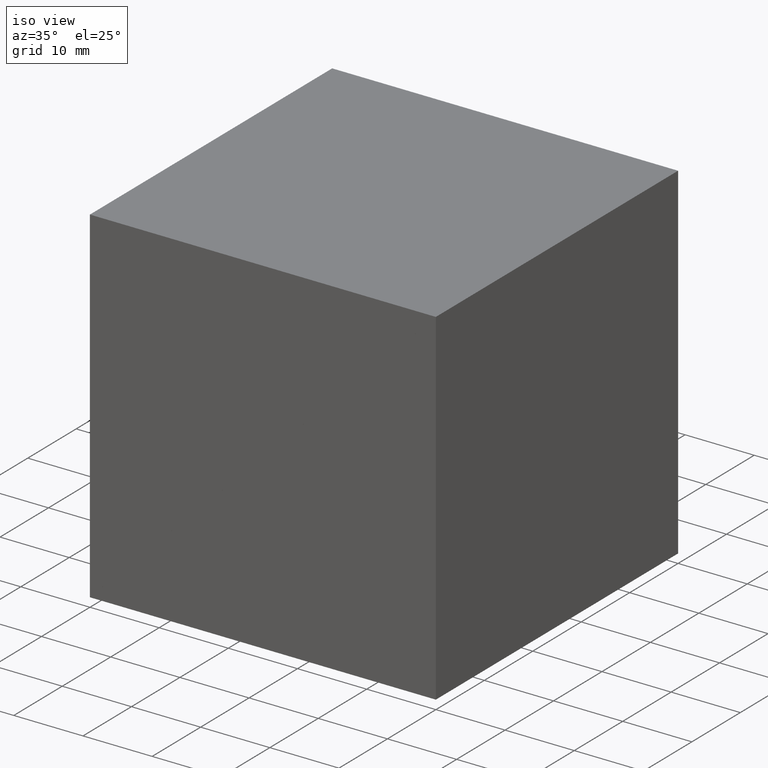
[diagram: clean part render]
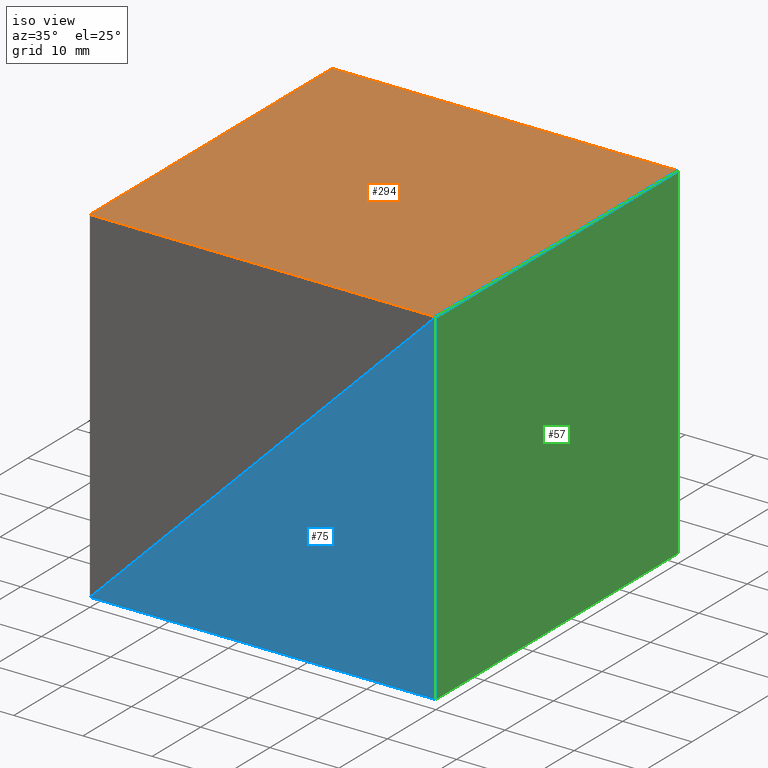
[diagram: same view with three faces highlighted in distinct colors, each labeled with its STEP entity id]
A machine part, iso view with three faces highlighted in distinct colors.
Their STEP definitions:

[orange] entity #294 — the highlighted planar face has unit normal (-0, 0, 1).
#6 = FACE_OUTER_BOUND ( 'NONE', #123, .T. ) ;
#8 = VECTOR ( 'NONE', #260, 1000.000000000000000 ) ;
#13 = LINE ( 'NONE', #59, #201 ) ;
#38 = AXIS2_PLACEMENT_3D ( 'NONE', #197, #61, #220 ) ;
#42 = LINE ( 'NONE', #211, #269 ) ;
#50 = DIRECTION ( 'NONE',  ( -1.000000000000000000, -0.0000000000000000000, -0.0000000000000000000 ) ) ;
#52 = ORIENTED_EDGE ( 'NONE', *, *, #173, .T. ) ;
#59 = CARTESIAN_POINT ( 'NONE',  ( -50.00000000000000000, 50.00000000000000000, 0.0000000000000000000 ) ) ;
#61 = DIRECTION ( 'NONE',  ( -0.0000000000000000000, 0.0000000000000000000, 1.000000000000000000 ) ) ;
#84 = PLANE ( 'NONE',  #38 ) ;
#95 = VERTEX_POINT ( 'NONE', #231 ) ;
#99 = CARTESIAN_POINT ( 'NONE',  ( -50.00000000000000000, 0.0000000000000000000, 0.0000000000000000000 ) ) ;
#116 = EDGE_CURVE ( 'NONE', #221, #297, #152, .T. ) ;
#123 = EDGE_LOOP ( 'NONE', ( #222, #247, #287, #52 ) ) ;
#129 = CARTESIAN_POINT ( 'NONE',  ( 0.0000000000000000000, 0.0000000000000000000, 0.0000000000000000000 ) ) ;
#152 = LINE ( 'NONE', #99, #165 ) ;
#165 = VECTOR ( 'NONE', #50, 1000.000000000000000 ) ;
#173 = EDGE_CURVE ( 'NONE', #95, #297, #284, .T. ) ;
#175 = DIRECTION ( 'NONE',  ( -1.000000000000000000, -0.0000000000000000000, -0.0000000000000000000 ) ) ;
#177 = CARTESIAN_POINT ( 'NONE',  ( -50.00000000000000000, 0.0000000000000000000, 0.0000000000000000000 ) ) ;
#197 = CARTESIAN_POINT ( 'NONE',  ( -50.00000000000000000, 50.00000000000000000, 0.0000000000000000000 ) ) ;
#201 = VECTOR ( 'NONE', #175, 1000.000000000000000 ) ;
#211 = CARTESIAN_POINT ( 'NONE',  ( 0.0000000000000000000, 50.00000000000000000, 0.0000000000000000000 ) ) ;
#220 = DIRECTION ( 'NONE',  ( 1.000000000000000000, 0.0000000000000000000, 0.0000000000000000000 ) ) ;
#221 = VERTEX_POINT ( 'NONE', #129 ) ;
#222 = ORIENTED_EDGE ( 'NONE', *, *, #116, .F. ) ;
#231 = CARTESIAN_POINT ( 'NONE',  ( -50.00000000000000000, 50.00000000000000000, 0.0000000000000000000 ) ) ;
#239 = CARTESIAN_POINT ( 'NONE',  ( -50.00000000000000000, 50.00000000000000000, 0.0000000000000000000 ) ) ;
#244 = EDGE_CURVE ( 'NONE', #273, #221, #42, .T. ) ;
#247 = ORIENTED_EDGE ( 'NONE', *, *, #244, .F. ) ;
#260 = DIRECTION ( 'NONE',  ( 0.0000000000000000000, -1.000000000000000000, 0.0000000000000000000 ) ) ;
#269 = VECTOR ( 'NONE', #295, 1000.000000000000000 ) ;
#273 = VERTEX_POINT ( 'NONE', #301 ) ;
#284 = LINE ( 'NONE', #239, #8 ) ;
#287 = ORIENTED_EDGE ( 'NONE', *, *, #290, .T. ) ;
#290 = EDGE_CURVE ( 'NONE', #273, #95, #13, .T. ) ;
#294 = ADVANCED_FACE ( 'NONE', ( #6 ), #84, .T. ) ;
#295 = DIRECTION ( 'NONE',  ( 0.0000000000000000000, -1.000000000000000000, 0.0000000000000000000 ) ) ;
#297 = VERTEX_POINT ( 'NONE', #177 ) ;
#301 = CARTESIAN_POINT ( 'NONE',  ( 0.0000000000000000000, 50.00000000000000000, 0.0000000000000000000 ) ) ;

[blue] entity #75 — the highlighted planar face has unit normal (-0, 1, 0).
#2 = ORIENTED_EDGE ( 'NONE', *, *, #71, .F. ) ;
#7 = DIRECTION ( 'NONE',  ( 0.0000000000000000000, -0.0000000000000000000, 1.000000000000000000 ) ) ;
#12 = CARTESIAN_POINT ( 'NONE',  ( -50.00000000000000000, 0.0000000000000000000, -49.99999999999999300 ) ) ;
#40 = VERTEX_POINT ( 'NONE', #194 ) ;
#41 = CARTESIAN_POINT ( 'NONE',  ( 0.0000000000000000000, 0.0000000000000000000, 0.0000000000000000000 ) ) ;
#55 = VERTEX_POINT ( 'NONE', #12 ) ;
#66 = VECTOR ( 'NONE', #69, 1000.000000000000000 ) ;
#69 = DIRECTION ( 'NONE',  ( 0.7071067811865475700, 0.0000000000000000000, 0.7071067811865474600 ) ) ;
#71 = EDGE_CURVE ( 'NONE', #40, #55, #83, .T. ) ;
#75 = ADVANCED_FACE ( 'NONE', ( #285 ), #160, .F. ) ;
#80 = DIRECTION ( 'NONE',  ( 0.0000000000000000000, 0.0000000000000000000, -1.000000000000000000 ) ) ;
#83 = LINE ( 'NONE', #253, #228 ) ;
#126 = VECTOR ( 'NONE', #80, 1000.000000000000000 ) ;
#133 = AXIS2_PLACEMENT_3D ( 'NONE', #41, #205, #7 ) ;
#136 = VERTEX_POINT ( 'NONE', #214 ) ;
#140 = EDGE_LOOP ( 'NONE', ( #153, #2, #218 ) ) ;
#153 = ORIENTED_EDGE ( 'NONE', *, *, #196, .F. ) ;
#155 = EDGE_CURVE ( 'NONE', #136, #40, #266, .T. ) ;
#160 = PLANE ( 'NONE',  #133 ) ;
#162 = DIRECTION ( 'NONE',  ( -1.000000000000000000, 0.0000000000000000000, 1.387778780781445700E-016 ) ) ;
#190 = CARTESIAN_POINT ( 'NONE',  ( 0.0000000000000000000, 0.0000000000000000000, 0.0000000000000000000 ) ) ;
#194 = CARTESIAN_POINT ( 'NONE',  ( 0.0000000000000000000, 0.0000000000000000000, -50.00000000000000000 ) ) ;
#196 = EDGE_CURVE ( 'NONE', #55, #136, #204, .T. ) ;
#204 = LINE ( 'NONE', #235, #66 ) ;
#205 = DIRECTION ( 'NONE',  ( -0.0000000000000000000, 1.000000000000000000, 0.0000000000000000000 ) ) ;
#214 = CARTESIAN_POINT ( 'NONE',  ( 0.0000000000000000000, 0.0000000000000000000, 0.0000000000000000000 ) ) ;
#218 = ORIENTED_EDGE ( 'NONE', *, *, #155, .F. ) ;
#228 = VECTOR ( 'NONE', #162, 1000.000000000000000 ) ;
#235 = CARTESIAN_POINT ( 'NONE',  ( -50.00000000000000000, 0.0000000000000000000, -49.99999999999999300 ) ) ;
#253 = CARTESIAN_POINT ( 'NONE',  ( 0.0000000000000000000, 0.0000000000000000000, -50.00000000000000000 ) ) ;
#266 = LINE ( 'NONE', #190, #126 ) ;
#285 = FACE_OUTER_BOUND ( 'NONE', #140, .T. ) ;

[green] entity #57 — the highlighted planar face has unit normal (-1, 0, 0).
#40 = VERTEX_POINT ( 'NONE', #194 ) ;
#51 = CARTESIAN_POINT ( 'NONE',  ( 0.0000000000000000000, 50.00000000000000000, 0.0000000000000000000 ) ) ;
#53 = CARTESIAN_POINT ( 'NONE',  ( 0.0000000000000000000, 50.00000000000000000, -50.00000000000000000 ) ) ;
#54 = LINE ( 'NONE', #51, #121 ) ;
#57 = ADVANCED_FACE ( 'NONE', ( #111 ), #208, .F. ) ;
#72 = DIRECTION ( 'NONE',  ( -1.000000000000000000, 0.0000000000000000000, 0.0000000000000000000 ) ) ;
#80 = DIRECTION ( 'NONE',  ( 0.0000000000000000000, 0.0000000000000000000, -1.000000000000000000 ) ) ;
#86 = VECTOR ( 'NONE', #128, 1000.000000000000000 ) ;
#104 = CARTESIAN_POINT ( 'NONE',  ( 0.0000000000000000000, 50.00000000000000000, 0.0000000000000000000 ) ) ;
#111 = FACE_OUTER_BOUND ( 'NONE', #169, .T. ) ;
#121 = VECTOR ( 'NONE', #241, 1000.000000000000000 ) ;
#126 = VECTOR ( 'NONE', #80, 1000.000000000000000 ) ;
#128 = DIRECTION ( 'NONE',  ( -0.0000000000000000000, -1.000000000000000000, -0.0000000000000000000 ) ) ;
#136 = VERTEX_POINT ( 'NONE', #214 ) ;
#141 = LINE ( 'NONE', #104, #86 ) ;
#151 = EDGE_CURVE ( 'NONE', #179, #291, #54, .T. ) ;
#155 = EDGE_CURVE ( 'NONE', #136, #40, #266, .T. ) ;
#159 = ORIENTED_EDGE ( 'NONE', *, *, #270, .T. ) ;
#168 = ORIENTED_EDGE ( 'NONE', *, *, #151, .F. ) ;
#169 = EDGE_LOOP ( 'NONE', ( #224, #225, #168, #159 ) ) ;
#174 = CARTESIAN_POINT ( 'NONE',  ( 0.0000000000000000000, 50.00000000000000000, -50.00000000000000000 ) ) ;
#179 = VERTEX_POINT ( 'NONE', #278 ) ;
#182 = DIRECTION ( 'NONE',  ( 0.0000000000000000000, 0.0000000000000000000, 1.000000000000000000 ) ) ;
#190 = CARTESIAN_POINT ( 'NONE',  ( 0.0000000000000000000, 0.0000000000000000000, 0.0000000000000000000 ) ) ;
#194 = CARTESIAN_POINT ( 'NONE',  ( 0.0000000000000000000, 0.0000000000000000000, -50.00000000000000000 ) ) ;
#208 = PLANE ( 'NONE',  #238 ) ;
#210 = LINE ( 'NONE', #174, #263 ) ;
#214 = CARTESIAN_POINT ( 'NONE',  ( 0.0000000000000000000, 0.0000000000000000000, 0.0000000000000000000 ) ) ;
#215 = DIRECTION ( 'NONE',  ( -0.0000000000000000000, -1.000000000000000000, -0.0000000000000000000 ) ) ;
#224 = ORIENTED_EDGE ( 'NONE', *, *, #155, .T. ) ;
#225 = ORIENTED_EDGE ( 'NONE', *, *, #250, .F. ) ;
#238 = AXIS2_PLACEMENT_3D ( 'NONE', #257, #72, #182 ) ;
#241 = DIRECTION ( 'NONE',  ( 0.0000000000000000000, 0.0000000000000000000, -1.000000000000000000 ) ) ;
#250 = EDGE_CURVE ( 'NONE', #291, #40, #210, .T. ) ;
#257 = CARTESIAN_POINT ( 'NONE',  ( 0.0000000000000000000, 50.00000000000000000, 0.0000000000000000000 ) ) ;
#263 = VECTOR ( 'NONE', #215, 1000.000000000000000 ) ;
#266 = LINE ( 'NONE', #190, #126 ) ;
#270 = EDGE_CURVE ( 'NONE', #179, #136, #141, .T. ) ;
#278 = CARTESIAN_POINT ( 'NONE',  ( 0.0000000000000000000, 50.00000000000000000, 0.0000000000000000000 ) ) ;
#291 = VERTEX_POINT ( 'NONE', #53 ) ;